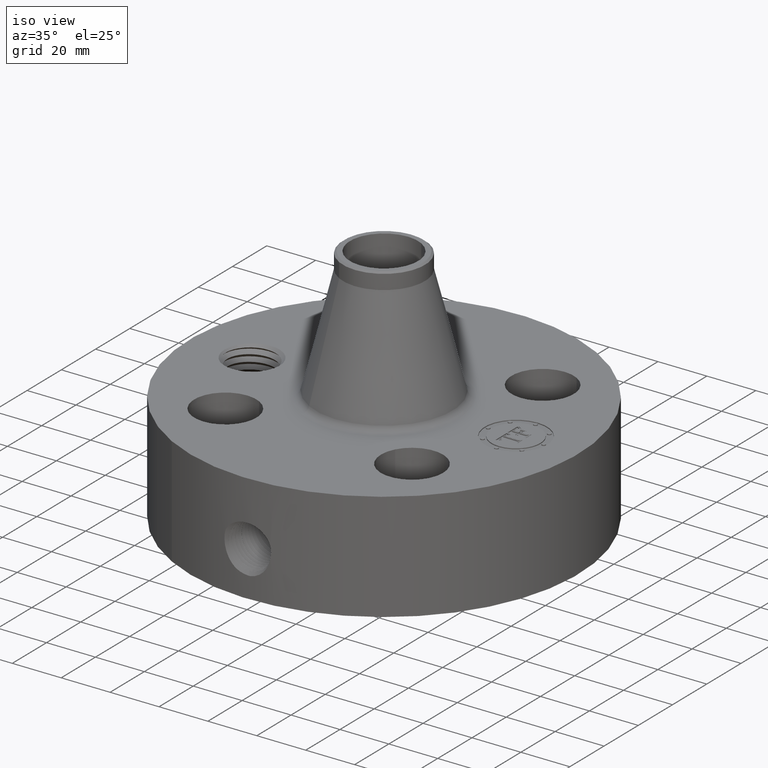
[diagram: clean part render]
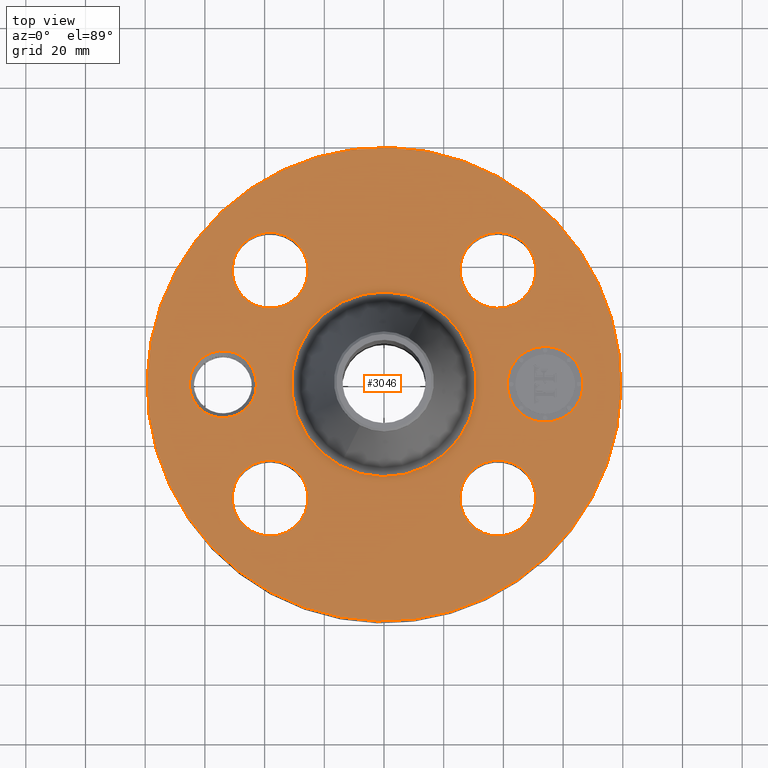
[diagram: tour spotlight — one face highlighted and labeled with its STEP entity id]
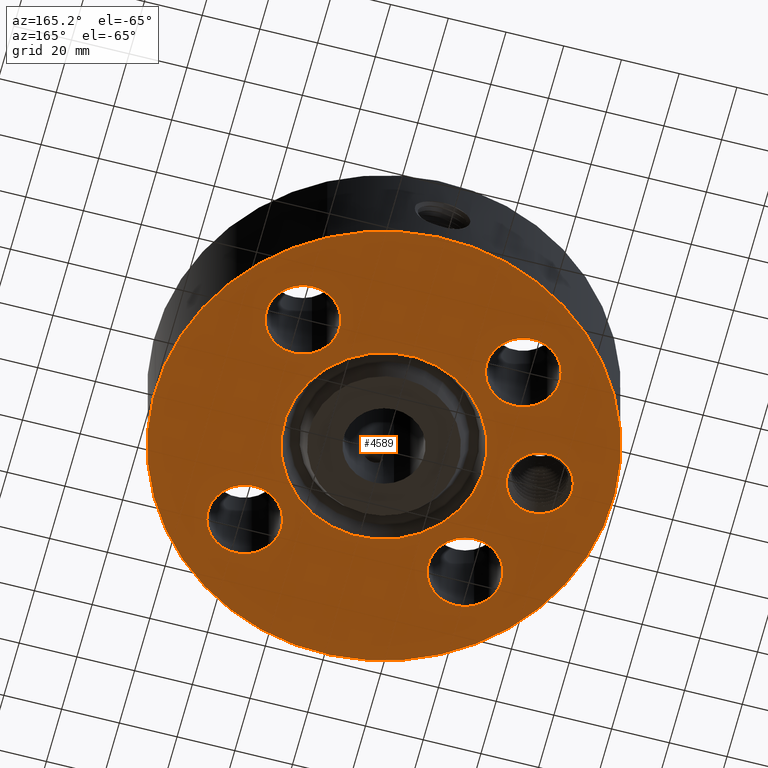
[diagram: tour spotlight — one face highlighted and labeled with its STEP entity id]
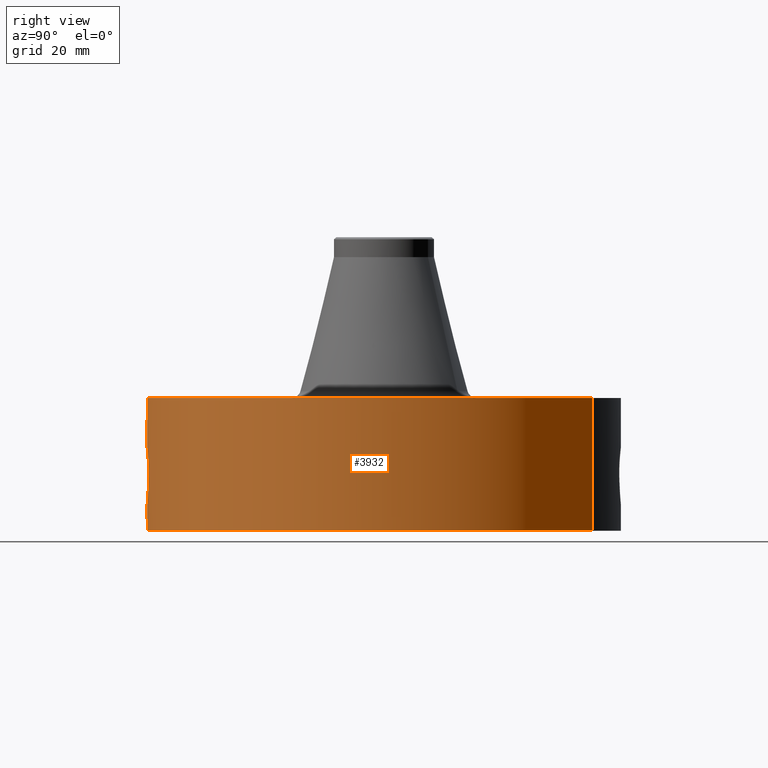
[diagram: tour spotlight — one face highlighted and labeled with its STEP entity id]
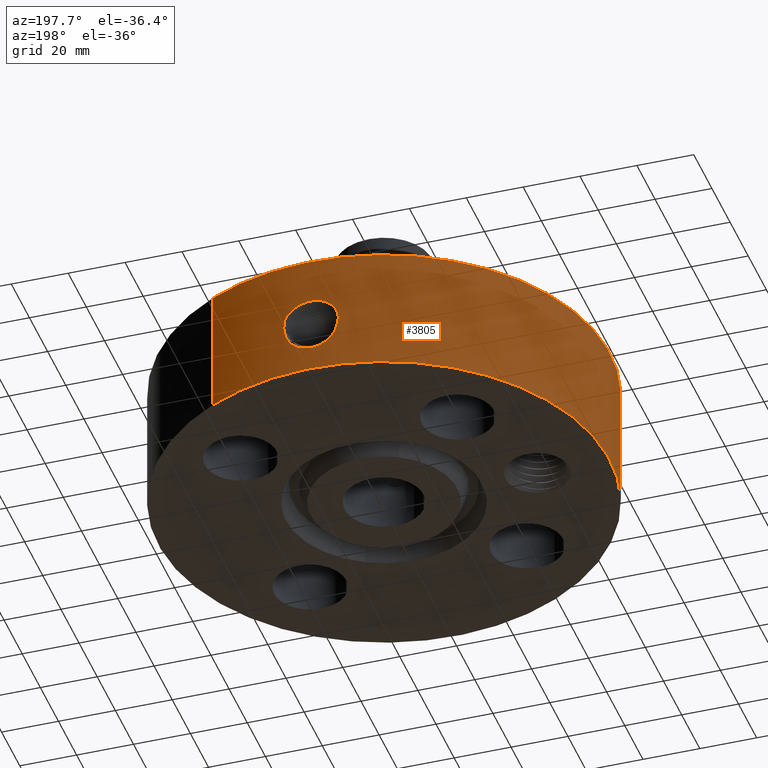
[diagram: tour spotlight — one face highlighted and labeled with its STEP entity id]
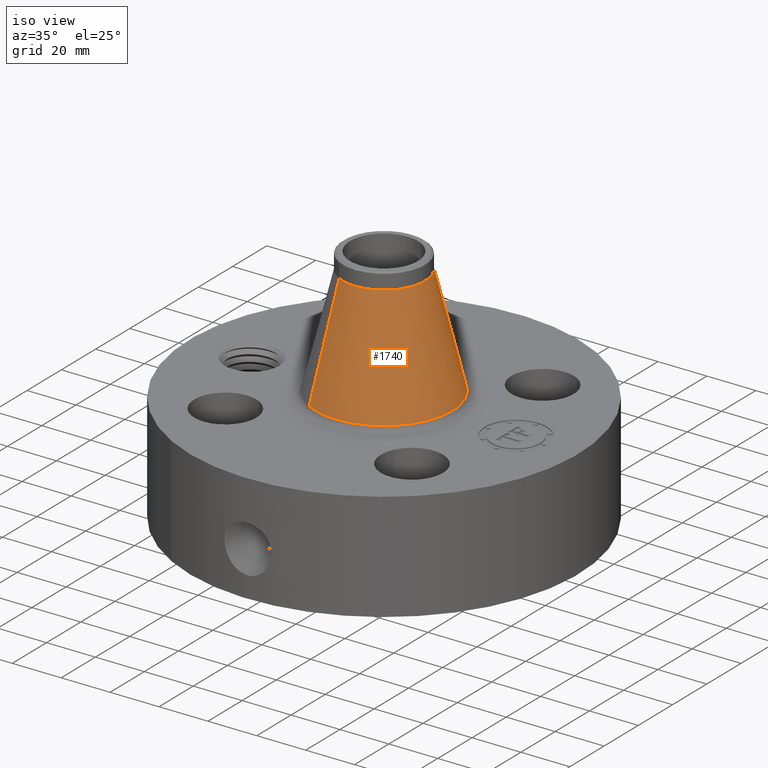
[diagram: tour spotlight — one face highlighted and labeled with its STEP entity id]
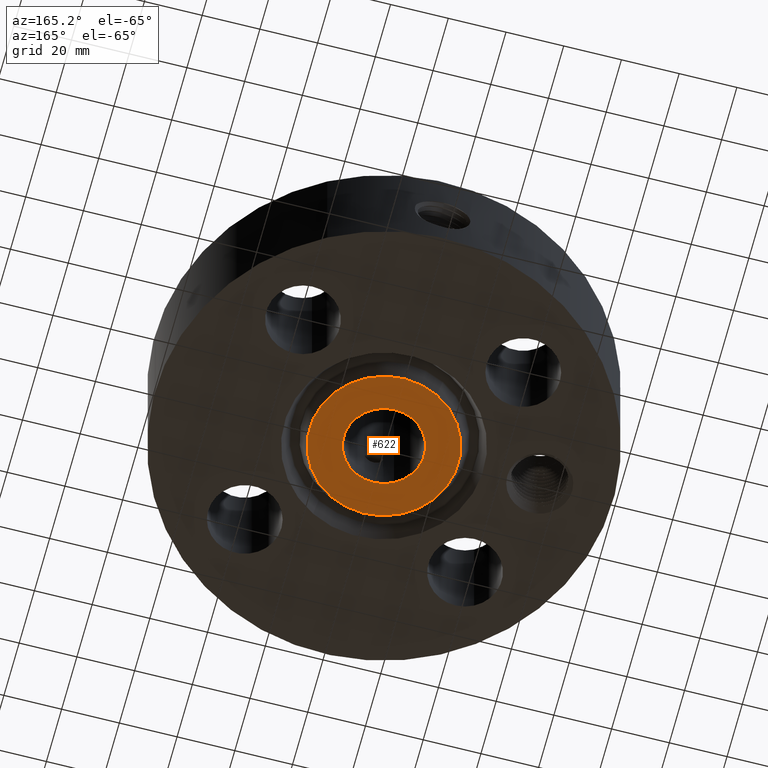
[diagram: tour spotlight — one face highlighted and labeled with its STEP entity id]
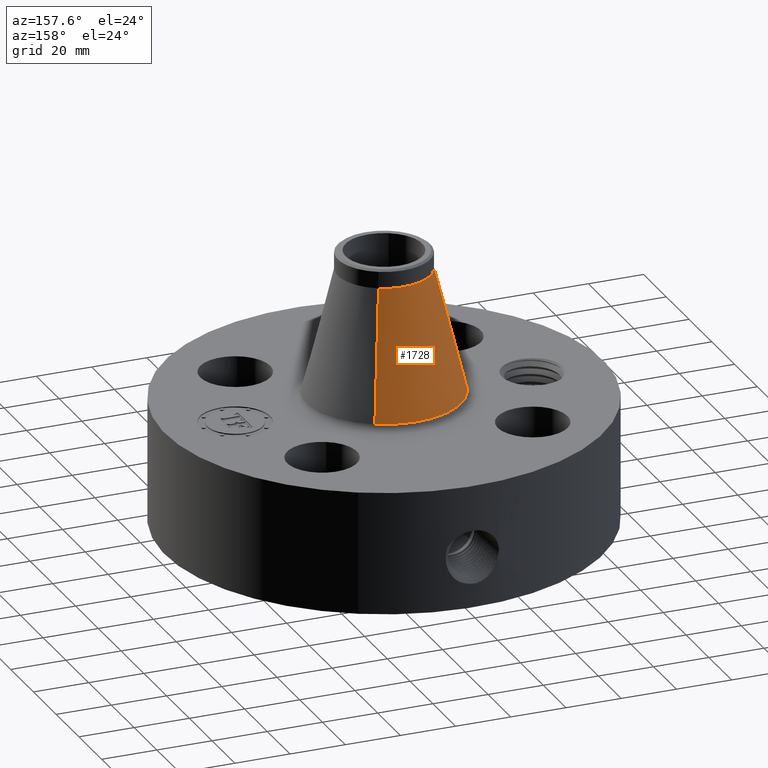
[diagram: tour spotlight — one face highlighted and labeled with its STEP entity id]
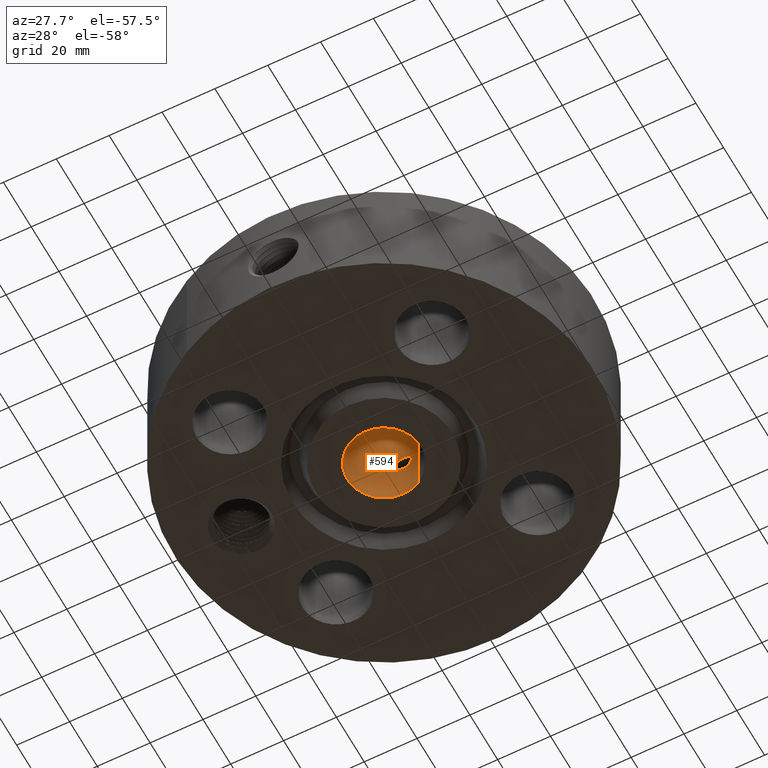
[diagram: tour spotlight — one face highlighted and labeled with its STEP entity id]
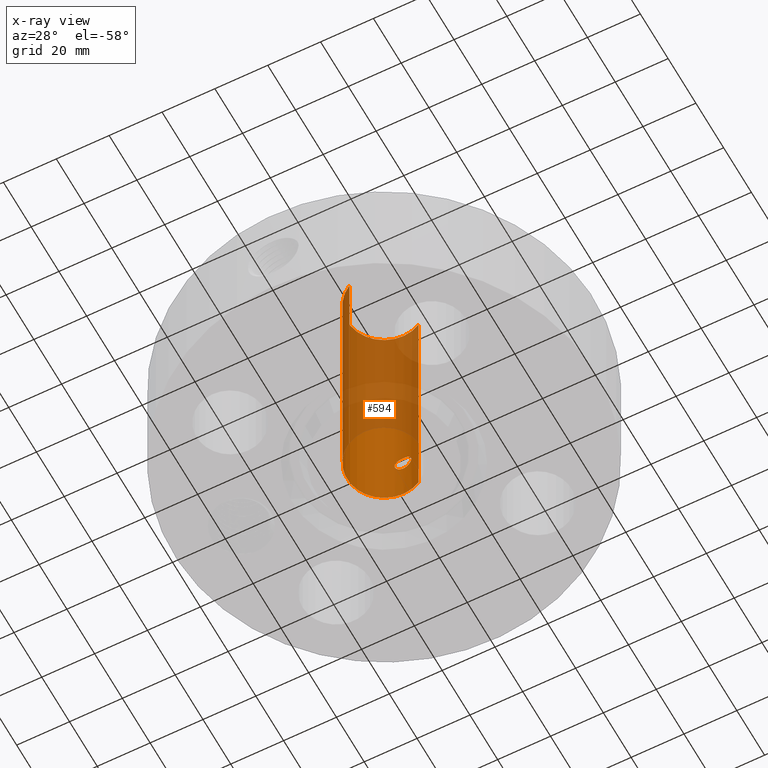
[diagram: x-ray of the same camera — body ghosted, this tour face saturated]
A machine part: a face-by-face anatomy tour. The part has 773 B-rep faces; the first image is the clean iso view, then the 8 largest visible faces are spotlighted one at a time (largest first), each with its STEP entity span.

Face 1 — top view, entity #3046. In plain terms, the highlighted planar face has unit normal (0, 0, -1).
Definition (entity closure, byte-faithful):
#2190=AXIS2_PLACEMENT_3D('Circle Axis2P3D',#2188,#2189,$) ;
#2216=AXIS2_PLACEMENT_3D('Circle Axis2P3D',#2214,#2215,$) ;
#2914=AXIS2_PLACEMENT_3D('Plane Axis2P3D',#2911,#2912,#2913) ;
#2918=AXIS2_PLACEMENT_3D('Circle Axis2P3D',#2916,#2917,$) ;
#2927=AXIS2_PLACEMENT_3D('Circle Axis2P3D',#2925,#2926,$) ;
#2936=AXIS2_PLACEMENT_3D('Circle Axis2P3D',#2934,#2935,$) ;
#2945=AXIS2_PLACEMENT_3D('Circle Axis2P3D',#2943,#2944,$) ;
#2954=AXIS2_PLACEMENT_3D('Circle Axis2P3D',#2952,#2953,$) ;
#2963=AXIS2_PLACEMENT_3D('Circle Axis2P3D',#2961,#2962,$) ;
#2976=AXIS2_PLACEMENT_3D('Circle Axis2P3D',#2974,#2975,$) ;
#2985=AXIS2_PLACEMENT_3D('Circle Axis2P3D',#2983,#2984,$) ;
#2994=AXIS2_PLACEMENT_3D('Circle Axis2P3D',#2992,#2993,$) ;
#3003=AXIS2_PLACEMENT_3D('Circle Axis2P3D',#3001,#3002,$) ;
#3012=AXIS2_PLACEMENT_3D('Circle Axis2P3D',#3010,#3011,$) ;
#3021=AXIS2_PLACEMENT_3D('Circle Axis2P3D',#3019,#3020,$) ;
#3030=AXIS2_PLACEMENT_3D('Circle Axis2P3D',#3028,#3029,$) ;
#3039=AXIS2_PLACEMENT_3D('Circle Axis2P3D',#3037,#3038,$) ;
#2188=CARTESIAN_POINT('Axis2P3D Location',(0.,0.,1.75000000001)) ;
#2192=CARTESIAN_POINT('Vertex',(-0.584264669885,-1.06948930445,1.75000000001)) ;
#2194=CARTESIAN_POINT('Vertex',(0.584264669885,1.06948930445,1.75000000001)) ;
#2214=CARTESIAN_POINT('Axis2P3D Location',(0.,0.,1.75000000001)) ;
#2911=CARTESIAN_POINT('Axis2P3D Location',(0.,3.12500000001,1.75000000001)) ;
#2916=CARTESIAN_POINT('Axis2P3D Location',(0.,0.,1.75000000001)) ;
#2920=CARTESIAN_POINT('Vertex',(1.49820480814,2.74244550592,1.75000000001)) ;
#2922=CARTESIAN_POINT('Vertex',(-1.49820480814,-2.74244550592,1.75000000001)) ;
#2925=CARTESIAN_POINT('Axis2P3D Location',(0.,0.,1.75000000001)) ;
#2934=CARTESIAN_POINT('Axis2P3D Location',(-2.12500000001,-5.59482469102E-016,1.75000000001)) ;
#2938=CARTESIAN_POINT('Vertex',(-2.51359355842,0.212289628495,1.75000000001)) ;
#2940=CARTESIAN_POINT('Vertex',(-1.7364064416,-0.212289628495,1.75000000001)) ;
#2943=CARTESIAN_POINT('Axis2P3D Location',(-2.12500000001,-5.59482469102E-016,1.75000000001)) ;
#2952=CARTESIAN_POINT('Axis2P3D Location',(1.50260191003,-1.50260191003,1.75000000001)) ;
#2956=CARTESIAN_POINT('Vertex',(1.06381062908,-1.26288914072,1.75000000001)) ;
#2958=CARTESIAN_POINT('Vertex',(1.94139319097,-1.74231467933,1.75000000001)) ;
#2961=CARTESIAN_POINT('Axis2P3D Location',(1.50260191003,-1.50260191003,1.75000000001)) ;
#2974=CARTESIAN_POINT('Axis2P3D Location',(-1.50260191003,-1.50260191003,1.75000000001)) ;
#2978=CARTESIAN_POINT('Vertex',(-1.74231467933,-1.94139319097,1.75000000001)) ;
#2980=CARTESIAN_POINT('Vertex',(-1.26288914072,-1.06381062908,1.75000000001)) ;
#2983=CARTESIAN_POINT('Axis2P3D Location',(-1.50260191003,-1.50260191003,1.75000000001)) ;
#2992=CARTESIAN_POINT('Axis2P3D Location',(-1.50260191003,1.50260191003,1.75000000001)) ;
#2996=CARTESIAN_POINT('Vertex',(-1.94139319097,1.74231467933,1.75000000001)) ;
#2998=CARTESIAN_POINT('Vertex',(-1.06381062908,1.26288914072,1.75000000001)) ;
#3001=CARTESIAN_POINT('Axis2P3D Location',(-1.50260191003,1.50260191003,1.75000000001)) ;
#3010=CARTESIAN_POINT('Axis2P3D Location',(1.50260191003,1.50260191003,1.75000000001)) ;
#3014=CARTESIAN_POINT('Vertex',(1.74231467933,1.94139319097,1.75000000001)) ;
#3016=CARTESIAN_POINT('Vertex',(1.26288914072,1.06381062908,1.75000000001)) ;
#3019=CARTESIAN_POINT('Axis2P3D Location',(1.50260191003,1.50260191003,1.75000000001)) ;
#3028=CARTESIAN_POINT('Axis2P3D Location',(2.12500000001,-5.59482469102E-015,1.75000000001)) ;
#3032=CARTESIAN_POINT('Vertex',(2.12500000001,0.499999995002,1.75000000001)) ;
#3034=CARTESIAN_POINT('Vertex',(2.12500000001,-0.499999995002,1.75000000001)) ;
#3037=CARTESIAN_POINT('Axis2P3D Location',(2.12500000001,-5.59482469102E-015,1.75000000001)) ;
#2189=DIRECTION('Axis2P3D Direction',(0.,0.,-0.0393700787402)) ;
#2215=DIRECTION('Axis2P3D Direction',(0.,0.,-0.0393700787402)) ;
#2912=DIRECTION('Axis2P3D Direction',(0.,0.,-0.0393700787402)) ;
#2913=DIRECTION('Axis2P3D XDirection',(0.0393700787402,0.,0.)) ;
#2917=DIRECTION('Axis2P3D Direction',(0.,0.,-0.0393700787402)) ;
#2926=DIRECTION('Axis2P3D Direction',(0.,0.,-0.0393700787402)) ;
#2935=DIRECTION('Axis2P3D Direction',(0.,0.,-0.0393700787402)) ;
#2944=DIRECTION('Axis2P3D Direction',(0.,0.,-0.0393700787402)) ;
#2953=DIRECTION('Axis2P3D Direction',(0.,0.,-0.0393700787402)) ;
#2962=DIRECTION('Axis2P3D Direction',(0.,0.,-0.0393700787402)) ;
#2975=DIRECTION('Axis2P3D Direction',(0.,0.,-0.0393700787402)) ;
#2984=DIRECTION('Axis2P3D Direction',(0.,0.,-0.0393700787402)) ;
#2993=DIRECTION('Axis2P3D Direction',(0.,0.,-0.0393700787402)) ;
#3002=DIRECTION('Axis2P3D Direction',(0.,0.,-0.0393700787402)) ;
#3011=DIRECTION('Axis2P3D Direction',(0.,0.,-0.0393700787402)) ;
#3020=DIRECTION('Axis2P3D Direction',(0.,0.,-0.0393700787402)) ;
#3029=DIRECTION('Axis2P3D Direction',(0.,0.,-0.0393700787402)) ;
#3038=DIRECTION('Axis2P3D Direction',(0.,0.,-0.0393700787402)) ;
#2931=ORIENTED_EDGE('',*,*,#2924,.F.) ;
#2932=ORIENTED_EDGE('',*,*,#2929,.F.) ;
#2949=ORIENTED_EDGE('',*,*,#2942,.T.) ;
#2950=ORIENTED_EDGE('',*,*,#2947,.T.) ;
#2967=ORIENTED_EDGE('',*,*,#2960,.T.) ;
#2968=ORIENTED_EDGE('',*,*,#2965,.T.) ;
#2971=ORIENTED_EDGE('',*,*,#2196,.T.) ;
#2972=ORIENTED_EDGE('',*,*,#2218,.T.) ;
#2989=ORIENTED_EDGE('',*,*,#2982,.T.) ;
#2990=ORIENTED_EDGE('',*,*,#2987,.T.) ;
#3007=ORIENTED_EDGE('',*,*,#3000,.T.) ;
#3008=ORIENTED_EDGE('',*,*,#3005,.T.) ;
#3025=ORIENTED_EDGE('',*,*,#3018,.T.) ;
#3026=ORIENTED_EDGE('',*,*,#3023,.T.) ;
#3043=ORIENTED_EDGE('',*,*,#3036,.T.) ;
#3044=ORIENTED_EDGE('',*,*,#3041,.T.) ;
#2951=FACE_BOUND('',#2948,.T.) ;
#2969=FACE_BOUND('',#2966,.T.) ;
#2973=FACE_BOUND('',#2970,.T.) ;
#2991=FACE_BOUND('',#2988,.T.) ;
#3009=FACE_BOUND('',#3006,.T.) ;
#3027=FACE_BOUND('',#3024,.T.) ;
#3045=FACE_BOUND('',#3042,.T.) ;
#3046=ADVANCED_FACE('PartBody',(#2933,#2951,#2969,#2973,#2991,#3009,#3027,#3045),#2915,.F.) ;
#2191=CIRCLE('generated circle',#2190,1.21867656777) ;
#2217=CIRCLE('generated circle',#2216,1.21867656777) ;
#2919=CIRCLE('generated circle',#2918,3.12500000001) ;
#2928=CIRCLE('generated circle',#2927,3.12500000001) ;
#2937=CIRCLE('generated circle',#2936,0.442800000002) ;
#2946=CIRCLE('generated circle',#2945,0.442800000002) ;
#2955=CIRCLE('generated circle',#2954,0.500000000002) ;
#2964=CIRCLE('generated circle',#2963,0.500000000002) ;
#2977=CIRCLE('generated circle',#2976,0.500000000002) ;
#2986=CIRCLE('generated circle',#2985,0.500000000002) ;
#2995=CIRCLE('generated circle',#2994,0.500000000002) ;
#3004=CIRCLE('generated circle',#3003,0.500000000002) ;
#3013=CIRCLE('generated circle',#3012,0.500000000002) ;
#3022=CIRCLE('generated circle',#3021,0.500000000002) ;
#3031=CIRCLE('generated circle',#3030,0.499999995002) ;
#3040=CIRCLE('generated circle',#3039,0.499999995002) ;
#2196=EDGE_CURVE('',#2193,#2195,#2191,.T.) ;
#2218=EDGE_CURVE('',#2195,#2193,#2217,.T.) ;
#2924=EDGE_CURVE('',#2921,#2923,#2919,.T.) ;
#2929=EDGE_CURVE('',#2923,#2921,#2928,.T.) ;
#2942=EDGE_CURVE('',#2939,#2941,#2937,.T.) ;
#2947=EDGE_CURVE('',#2941,#2939,#2946,.T.) ;
#2960=EDGE_CURVE('',#2957,#2959,#2955,.T.) ;
#2965=EDGE_CURVE('',#2959,#2957,#2964,.T.) ;
#2982=EDGE_CURVE('',#2979,#2981,#2977,.T.) ;
#2987=EDGE_CURVE('',#2981,#2979,#2986,.T.) ;
#3000=EDGE_CURVE('',#2997,#2999,#2995,.T.) ;
#3005=EDGE_CURVE('',#2999,#2997,#3004,.T.) ;
#3018=EDGE_CURVE('',#3015,#3017,#3013,.T.) ;
#3023=EDGE_CURVE('',#3017,#3015,#3022,.T.) ;
#3036=EDGE_CURVE('',#3033,#3035,#3031,.T.) ;
#3041=EDGE_CURVE('',#3035,#3033,#3040,.T.) ;
#2930=EDGE_LOOP('',(#2931,#2932)) ;
#2948=EDGE_LOOP('',(#2949,#2950)) ;
#2966=EDGE_LOOP('',(#2967,#2968)) ;
#2970=EDGE_LOOP('',(#2971,#2972)) ;
#2988=EDGE_LOOP('',(#2989,#2990)) ;
#3006=EDGE_LOOP('',(#3007,#3008)) ;
#3024=EDGE_LOOP('',(#3025,#3026)) ;
#3042=EDGE_LOOP('',(#3043,#3044)) ;
#2933=FACE_OUTER_BOUND('',#2930,.T.) ;
#2915=PLANE('',#2914) ;
#2193=VERTEX_POINT('',#2192) ;
#2195=VERTEX_POINT('',#2194) ;
#2921=VERTEX_POINT('',#2920) ;
#2923=VERTEX_POINT('',#2922) ;
#2939=VERTEX_POINT('',#2938) ;
#2941=VERTEX_POINT('',#2940) ;
#2957=VERTEX_POINT('',#2956) ;
#2959=VERTEX_POINT('',#2958) ;
#2979=VERTEX_POINT('',#2978) ;
#2981=VERTEX_POINT('',#2980) ;
#2997=VERTEX_POINT('',#2996) ;
#2999=VERTEX_POINT('',#2998) ;
#3015=VERTEX_POINT('',#3014) ;
#3017=VERTEX_POINT('',#3016) ;
#3033=VERTEX_POINT('',#3032) ;
#3035=VERTEX_POINT('',#3034) ;

Face 2 — auxiliary view, entity #4589. In plain terms, the highlighted planar face has unit normal (0, 0, -1).
Definition (entity closure, byte-faithful):
#598=AXIS2_PLACEMENT_3D('Plane Axis2P3D',#595,#596,#597) ;
#3368=AXIS2_PLACEMENT_3D('Circle Axis2P3D',#3366,#3367,$) ;
#3394=AXIS2_PLACEMENT_3D('Circle Axis2P3D',#3392,#3393,$) ;
#3667=AXIS2_PLACEMENT_3D('Circle Axis2P3D',#3665,#3666,$) ;
#3808=AXIS2_PLACEMENT_3D('Circle Axis2P3D',#3806,#3807,$) ;
#4094=AXIS2_PLACEMENT_3D('Circle Axis2P3D',#4092,#4093,$) ;
#4113=AXIS2_PLACEMENT_3D('Circle Axis2P3D',#4111,#4112,$) ;
#4137=AXIS2_PLACEMENT_3D('Circle Axis2P3D',#4135,#4136,$) ;
#4156=AXIS2_PLACEMENT_3D('Circle Axis2P3D',#4154,#4155,$) ;
#4180=AXIS2_PLACEMENT_3D('Circle Axis2P3D',#4178,#4179,$) ;
#4199=AXIS2_PLACEMENT_3D('Circle Axis2P3D',#4197,#4198,$) ;
#4223=AXIS2_PLACEMENT_3D('Circle Axis2P3D',#4221,#4222,$) ;
#4242=AXIS2_PLACEMENT_3D('Circle Axis2P3D',#4240,#4241,$) ;
#4553=AXIS2_PLACEMENT_3D('Circle Axis2P3D',#4551,#4552,$) ;
#4562=AXIS2_PLACEMENT_3D('Circle Axis2P3D',#4560,#4561,$) ;
#595=CARTESIAN_POINT('Axis2P3D Location',(0.,0.548500000002,0.)) ;
#3366=CARTESIAN_POINT('Axis2P3D Location',(0.,0.,0.)) ;
#3370=CARTESIAN_POINT('Vertex',(-0.651779019735,1.19307349289,0.)) ;
#3372=CARTESIAN_POINT('Vertex',(0.651779019735,-1.19307349289,0.)) ;
#3392=CARTESIAN_POINT('Axis2P3D Location',(0.,0.,0.)) ;
#3665=CARTESIAN_POINT('Axis2P3D Location',(0.,0.,2.79741234551E-016)) ;
#3669=CARTESIAN_POINT('Vertex',(-1.49820480814,-2.74244550592,2.79741234551E-016)) ;
#3671=CARTESIAN_POINT('Vertex',(1.49820480814,2.74244550592,2.79741234551E-016)) ;
#3806=CARTESIAN_POINT('Axis2P3D Location',(0.,0.,2.79741234551E-016)) ;
#4089=CARTESIAN_POINT('Vertex',(1.94139319097,-1.74231467933,0.)) ;
#4092=CARTESIAN_POINT('Axis2P3D Location',(1.50260191003,-1.50260191003,0.)) ;
#4096=CARTESIAN_POINT('Vertex',(1.06381062908,-1.26288914072,0.)) ;
#4111=CARTESIAN_POINT('Axis2P3D Location',(1.50260191003,-1.50260191003,0.)) ;
#4132=CARTESIAN_POINT('Vertex',(-1.26288914072,-1.06381062908,0.)) ;
#4135=CARTESIAN_POINT('Axis2P3D Location',(-1.50260191003,-1.50260191003,0.)) ;
#4139=CARTESIAN_POINT('Vertex',(-1.74231467933,-1.94139319097,0.)) ;
#4154=CARTESIAN_POINT('Axis2P3D Location',(-1.50260191003,-1.50260191003,0.)) ;
#4175=CARTESIAN_POINT('Vertex',(-1.06381062908,1.26288914072,0.)) ;
#4178=CARTESIAN_POINT('Axis2P3D Location',(-1.50260191003,1.50260191003,0.)) ;
#4182=CARTESIAN_POINT('Vertex',(-1.94139319097,1.74231467933,0.)) ;
#4197=CARTESIAN_POINT('Axis2P3D Location',(-1.50260191003,1.50260191003,0.)) ;
#4218=CARTESIAN_POINT('Vertex',(1.26288914072,1.06381062908,0.)) ;
#4221=CARTESIAN_POINT('Axis2P3D Location',(1.50260191003,1.50260191003,0.)) ;
#4225=CARTESIAN_POINT('Vertex',(1.74231467933,1.94139319097,0.)) ;
#4240=CARTESIAN_POINT('Axis2P3D Location',(1.50260191003,1.50260191003,0.)) ;
#4551=CARTESIAN_POINT('Axis2P3D Location',(-2.12500000001,6.99353086378E-017,0.)) ;
#4555=CARTESIAN_POINT('Vertex',(-1.7364064416,-0.212289628495,0.)) ;
#4557=CARTESIAN_POINT('Vertex',(-2.51359355842,0.212289628495,0.)) ;
#4560=CARTESIAN_POINT('Axis2P3D Location',(-2.12500000001,6.99353086378E-017,0.)) ;
#596=DIRECTION('Axis2P3D Direction',(0.,0.,-0.0393700787402)) ;
#597=DIRECTION('Axis2P3D XDirection',(0.0393700787402,0.,0.)) ;
#3367=DIRECTION('Axis2P3D Direction',(0.,0.,-0.0393700787402)) ;
#3393=DIRECTION('Axis2P3D Direction',(0.,0.,-0.0393700787402)) ;
#3666=DIRECTION('Axis2P3D Direction',(0.,0.,-0.0393700787402)) ;
#3807=DIRECTION('Axis2P3D Direction',(0.,0.,-0.0393700787402)) ;
#4093=DIRECTION('Axis2P3D Direction',(0.,-0.,-0.0393700787402)) ;
#4112=DIRECTION('Axis2P3D Direction',(0.,-0.,-0.0393700787402)) ;
#4136=DIRECTION('Axis2P3D Direction',(0.,-0.,-0.0393700787402)) ;
#4155=DIRECTION('Axis2P3D Direction',(0.,-0.,-0.0393700787402)) ;
#4179=DIRECTION('Axis2P3D Direction',(-0.,0.,-0.0393700787402)) ;
#4198=DIRECTION('Axis2P3D Direction',(-0.,0.,-0.0393700787402)) ;
#4222=DIRECTION('Axis2P3D Direction',(0.,0.,-0.0393700787402)) ;
#4241=DIRECTION('Axis2P3D Direction',(0.,0.,-0.0393700787402)) ;
#4552=DIRECTION('Axis2P3D Direction',(0.,0.,-0.0393700787402)) ;
#4561=DIRECTION('Axis2P3D Direction',(0.,0.,-0.0393700787402)) ;
#4548=ORIENTED_EDGE('',*,*,#3673,.T.) ;
#4549=ORIENTED_EDGE('',*,*,#3810,.T.) ;
#4566=ORIENTED_EDGE('',*,*,#4559,.F.) ;
#4567=ORIENTED_EDGE('',*,*,#4564,.F.) ;
#4570=ORIENTED_EDGE('',*,*,#4098,.F.) ;
#4571=ORIENTED_EDGE('',*,*,#4115,.F.) ;
#4574=ORIENTED_EDGE('',*,*,#4141,.F.) ;
#4575=ORIENTED_EDGE('',*,*,#4158,.F.) ;
#4578=ORIENTED_EDGE('',*,*,#4184,.F.) ;
#4579=ORIENTED_EDGE('',*,*,#4201,.F.) ;
#4582=ORIENTED_EDGE('',*,*,#4227,.F.) ;
#4583=ORIENTED_EDGE('',*,*,#4244,.F.) ;
#4586=ORIENTED_EDGE('',*,*,#3396,.F.) ;
#4587=ORIENTED_EDGE('',*,*,#3374,.F.) ;
#4568=FACE_BOUND('',#4565,.T.) ;
#4572=FACE_BOUND('',#4569,.T.) ;
#4576=FACE_BOUND('',#4573,.T.) ;
#4580=FACE_BOUND('',#4577,.T.) ;
#4584=FACE_BOUND('',#4581,.T.) ;
#4588=FACE_BOUND('',#4585,.T.) ;
#4589=ADVANCED_FACE('PartBody',(#4550,#4568,#4572,#4576,#4580,#4584,#4588),#599,.T.) ;
#3369=CIRCLE('generated circle',#3368,1.35950000001) ;
#3395=CIRCLE('generated circle',#3394,1.35950000001) ;
#3668=CIRCLE('generated circle',#3667,3.12500000001) ;
#3809=CIRCLE('generated circle',#3808,3.12500000001) ;
#4095=CIRCLE('generated circle',#4094,0.500000000002) ;
#4114=CIRCLE('generated circle',#4113,0.500000000002) ;
#4138=CIRCLE('generated circle',#4137,0.500000000002) ;
#4157=CIRCLE('generated circle',#4156,0.500000000002) ;
#4181=CIRCLE('generated circle',#4180,0.500000000002) ;
#4200=CIRCLE('generated circle',#4199,0.500000000002) ;
#4224=CIRCLE('generated circle',#4223,0.500000000002) ;
#4243=CIRCLE('generated circle',#4242,0.500000000002) ;
#4554=CIRCLE('generated circle',#4553,0.442800000002) ;
#4563=CIRCLE('generated circle',#4562,0.442800000002) ;
#3374=EDGE_CURVE('',#3371,#3373,#3369,.T.) ;
#3396=EDGE_CURVE('',#3373,#3371,#3395,.T.) ;
#3673=EDGE_CURVE('',#3670,#3672,#3668,.T.) ;
#3810=EDGE_CURVE('',#3672,#3670,#3809,.T.) ;
#4098=EDGE_CURVE('',#4090,#4097,#4095,.T.) ;
#4115=EDGE_CURVE('',#4097,#4090,#4114,.T.) ;
#4141=EDGE_CURVE('',#4133,#4140,#4138,.T.) ;
#4158=EDGE_CURVE('',#4140,#4133,#4157,.T.) ;
#4184=EDGE_CURVE('',#4176,#4183,#4181,.T.) ;
#4201=EDGE_CURVE('',#4183,#4176,#4200,.T.) ;
#4227=EDGE_CURVE('',#4219,#4226,#4224,.T.) ;
#4244=EDGE_CURVE('',#4226,#4219,#4243,.T.) ;
#4559=EDGE_CURVE('',#4556,#4558,#4554,.T.) ;
#4564=EDGE_CURVE('',#4558,#4556,#4563,.T.) ;
#4547=EDGE_LOOP('',(#4548,#4549)) ;
#4565=EDGE_LOOP('',(#4566,#4567)) ;
#4569=EDGE_LOOP('',(#4570,#4571)) ;
#4573=EDGE_LOOP('',(#4574,#4575)) ;
#4577=EDGE_LOOP('',(#4578,#4579)) ;
#4581=EDGE_LOOP('',(#4582,#4583)) ;
#4585=EDGE_LOOP('',(#4586,#4587)) ;
#4550=FACE_OUTER_BOUND('',#4547,.T.) ;
#599=PLANE('',#598) ;
#3371=VERTEX_POINT('',#3370) ;
#3373=VERTEX_POINT('',#3372) ;
#3670=VERTEX_POINT('',#3669) ;
#3672=VERTEX_POINT('',#3671) ;
#4090=VERTEX_POINT('',#4089) ;
#4097=VERTEX_POINT('',#4096) ;
#4133=VERTEX_POINT('',#4132) ;
#4140=VERTEX_POINT('',#4139) ;
#4176=VERTEX_POINT('',#4175) ;
#4183=VERTEX_POINT('',#4182) ;
#4219=VERTEX_POINT('',#4218) ;
#4226=VERTEX_POINT('',#4225) ;
#4556=VERTEX_POINT('',#4555) ;
#4558=VERTEX_POINT('',#4557) ;

Face 3 — right view, entity #3932. In plain terms, the highlighted cylindrical surface (partial cylindrical patch) has radius 79.375 mm, axis along (0, 0, -1).
Definition (entity closure, byte-faithful):
#2918=AXIS2_PLACEMENT_3D('Circle Axis2P3D',#2916,#2917,$) ;
#3663=AXIS2_PLACEMENT_3D('Cylinder Axis2P3D',#3660,#3661,#3662) ;
#3808=AXIS2_PLACEMENT_3D('Circle Axis2P3D',#3806,#3807,$) ;
#2916=CARTESIAN_POINT('Axis2P3D Location',(0.,0.,1.75000000001)) ;
#2920=CARTESIAN_POINT('Vertex',(1.49820480814,2.74244550592,1.75000000001)) ;
#2922=CARTESIAN_POINT('Vertex',(-1.49820480814,-2.74244550592,1.75000000001)) ;
#3660=CARTESIAN_POINT('Axis2P3D Location',(0.,0.,1.93500000001)) ;
#3669=CARTESIAN_POINT('Vertex',(-1.49820480814,-2.74244550592,2.79741234551E-016)) ;
#3671=CARTESIAN_POINT('Vertex',(1.49820480814,2.74244550592,2.79741234551E-016)) ;
#3674=CARTESIAN_POINT('Line Origine',(-1.49820480814,-2.74244550592,0.875000000004)) ;
#3679=CARTESIAN_POINT('Line Origine',(1.49820480814,2.74244550592,0.875000000004)) ;
#3806=CARTESIAN_POINT('Axis2P3D Location',(0.,0.,2.79741234551E-016)) ;
#3818=CARTESIAN_POINT('Control Point',(0.169704717538,-3.1203886471,1.06064240177)) ;
#3819=CARTESIAN_POINT('Control Point',(0.1310838979,-3.12248906984,1.0818158456)) ;
#3820=CARTESIAN_POINT('Control Point',(0.0889131026115,-3.12414682281,1.09658641964)) ;
#3821=CARTESIAN_POINT('Control Point',(0.044818629583,-3.1249897837,1.10402879623)) ;
#3822=CARTESIAN_POINT('Control Point',(0.00071809005673,-3.12499991751,1.1041184944)) ;
#3823=CARTESIAN_POINT('Vertex',(0.169704717538,-3.1203886471,1.06064240177)) ;
#3825=CARTESIAN_POINT('Vertex',(0.000717741354547,-3.12499991759,1.10411850437)) ;
#3829=CARTESIAN_POINT('Control Point',(0.214828365203,-3.11760705888,1.03122168402)) ;
#3830=CARTESIAN_POINT('Control Point',(0.200567444893,-3.11858975174,1.04215440214)) ;
#3831=CARTESIAN_POINT('Control Point',(0.185468800736,-3.1195313054,1.05199991481)) ;
#3832=CARTESIAN_POINT('Control Point',(0.169704717538,-3.1203886471,1.06064240177)) ;
#3833=CARTESIAN_POINT('Vertex',(0.214819755124,-3.11760740685,1.03122827568)) ;
#3837=CARTESIAN_POINT('Control Point',(0.349319520623,-3.1054147666,0.695751740493)) ;
#3838=CARTESIAN_POINT('Control Point',(0.367742391069,-3.10334242884,0.769887138265)) ;
#3839=CARTESIAN_POINT('Control Point',(0.362872189342,-3.10371965124,0.851313227567)) ;
#3840=CARTESIAN_POINT('Control Point',(0.328330014033,-3.10823669973,0.927181129357)) ;
#3841=CARTESIAN_POINT('Control Point',(0.277094377688,-3.11331660396,0.987020183701)) ;
#3842=CARTESIAN_POINT('Control Point',(0.2148195246,-3.11760766806,1.03122796377)) ;
#3843=CARTESIAN_POINT('Vertex',(0.349319944292,-3.10541445784,0.695751408099)) ;
#3847=CARTESIAN_POINT('Control Point',(0.343314956419,-3.10608432609,0.665638005248)) ;
#3848=CARTESIAN_POINT('Control Point',(0.345750263741,-3.105815152,0.675583767346)) ;
#3849=CARTESIAN_POINT('Control Point',(0.347754761635,-3.10559078264,0.685635939979)) ;
#3850=CARTESIAN_POINT('Control Point',(0.349320760795,-3.10541462709,0.695756639812)) ;
#3851=CARTESIAN_POINT('Vertex',(0.343316361651,-3.10608454098,0.665643528244)) ;
#3855=CARTESIAN_POINT('Control Point',(0.0277254576848,-3.12487700543,0.340955879504)) ;
#3856=CARTESIAN_POINT('Control Point',(0.0774181260001,-3.12443610745,0.347426040391)) ;
#3857=CARTESIAN_POINT('Control Point',(0.125647813854,-3.1230203286,0.363124264442)) ;
#3858=CARTESIAN_POINT('Control Point',(0.169868202372,-3.1207710219,0.387404846871)) ;
#3859=CARTESIAN_POINT('Control Point',(0.247734908791,-3.11560980068,0.449013447963)) ;
#3860=CARTESIAN_POINT('Control Point',(0.301618432704,-3.11055308527,0.529926850641)) ;
#3861=CARTESIAN_POINT('Control Point',(0.322082747729,-3.10840919382,0.573713153298)) ;
#3862=CARTESIAN_POINT('Control Point',(0.335978460495,-3.10689522983,0.619331126296)) ;
#3863=CARTESIAN_POINT('Control Point',(0.343315847394,-3.10608422761,0.66564370871)) ;
#3864=CARTESIAN_POINT('Vertex',(0.0277254576848,-3.12487700543,0.340955879504)) ;
#3868=CARTESIAN_POINT('Control Point',(0.0277254576848,-3.12487700543,0.340955879504)) ;
#3869=CARTESIAN_POINT('Control Point',(0.0184757556471,-3.12495907337,0.340843344739)) ;
#3870=CARTESIAN_POINT('Control Point',(0.00922750800052,-3.12500000807,0.340982960287)) ;
#3871=CARTESIAN_POINT('Control Point',(-2.72878353707E-006,-3.12500000001,0.341374667803)) ;
#3872=CARTESIAN_POINT('Vertex',(-2.72878353443E-006,-3.12500000001,0.341374667803)) ;
#3876=CARTESIAN_POINT('Control Point',(-0.196165446846,-3.11883698156,0.390926701887)) ;
#3877=CARTESIAN_POINT('Control Point',(-0.135166171215,-3.12267365216,0.360852379196)) ;
#3878=CARTESIAN_POINT('Control Point',(-0.0679575223114,-3.12499994067,0.344258495021)) ;
#3879=CARTESIAN_POINT('Control Point',(-2.7287835343E-006,-3.12500000001,0.341374667803)) ;
#3880=CARTESIAN_POINT('Vertex',(-0.196165446846,-3.11883698156,0.390926701887)) ;
#3884=CARTESIAN_POINT('Control Point',(-0.208430700444,-3.11804131518,0.39720075365)) ;
#3885=CARTESIAN_POINT('Control Point',(-0.204372509624,-3.11831259175,0.395048408364)) ;
#3886=CARTESIAN_POINT('Control Point',(-0.200283259171,-3.11857798357,0.392956896705)) ;
#3887=CARTESIAN_POINT('Control Point',(-0.196165446846,-3.11883698156,0.390926701887)) ;
#3888=CARTESIAN_POINT('Vertex',(-0.208430700444,-3.11804131518,0.39720075365)) ;
#3892=CARTESIAN_POINT('Control Point',(-0.208430700444,-3.11804131518,0.39720075365)) ;
#3893=CARTESIAN_POINT('Control Point',(-0.260864565297,-3.11453628556,0.431760962722)) ;
#3894=CARTESIAN_POINT('Control Point',(-0.305853227075,-3.11042183958,0.477063821358)) ;
#3895=CARTESIAN_POINT('Control Point',(-0.341117458034,-3.10650438179,0.529732598577)) ;
#3896=CARTESIAN_POINT('Control Point',(-0.3881230344,-3.10089436294,0.634758914234)) ;
#3897=CARTESIAN_POINT('Control Point',(-0.402021851965,-3.09902386779,0.748522756876)) ;
#3898=CARTESIAN_POINT('Control Point',(-0.401434794041,-3.09910244712,0.800960648065)) ;
#3899=CARTESIAN_POINT('Control Point',(-0.393890460231,-3.10011096876,0.853010388321)) ;
#3900=CARTESIAN_POINT('Control Point',(-0.379413664747,-3.10188173067,0.903435446735)) ;
#3901=CARTESIAN_POINT('Vertex',(-0.379413664747,-3.10188173067,0.903435446735)) ;
#3905=CARTESIAN_POINT('Control Point',(-0.379413664747,-3.10188173067,0.903435446735)) ;
#3906=CARTESIAN_POINT('Control Point',(-0.333043374255,-3.10755361741,0.98499041489)) ;
#3907=CARTESIAN_POINT('Control Point',(-0.261045430271,-3.11551492767,1.04977075899)) ;
#3908=CARTESIAN_POINT('Control Point',(-0.176679203557,-3.12196183692,1.0900818921)) ;
#3909=CARTESIAN_POINT('Control Point',(-0.0874794971957,-3.12500072397,1.10844239302)) ;
#3910=CARTESIAN_POINT('Control Point',(2.58579354908E-005,-3.12499999991,1.10415298443)) ;
#3911=CARTESIAN_POINT('Vertex',(2.58579354929E-005,-3.12499999991,1.10415298443)) ;
#3915=CARTESIAN_POINT('Control Point',(0.000717741340626,-3.12499991759,1.10411850435)) ;
#3916=CARTESIAN_POINT('Control Point',(0.000371821770505,-3.12499999704,1.1041360257)) ;
#3917=CARTESIAN_POINT('Control Point',(2.5857945767E-005,-3.12499999991,1.10415298442)) ;
#2917=DIRECTION('Axis2P3D Direction',(0.,0.,-0.0393700787402)) ;
#3661=DIRECTION('Axis2P3D Direction',(0.,0.,-0.0393700787402)) ;
#3662=DIRECTION('Axis2P3D XDirection',(0.0188750212049,0.0345504945626,0.)) ;
#3675=DIRECTION('Vector Direction',(0.,0.,-0.0393700787402)) ;
#3680=DIRECTION('Vector Direction',(0.,0.,-0.0393700787402)) ;
#3807=DIRECTION('Axis2P3D Direction',(0.,0.,-0.0393700787402)) ;
#3676=VECTOR('Line Direction',#3675,0.0393700787402) ;
#3681=VECTOR('Line Direction',#3680,0.0393700787402) ;
#3812=ORIENTED_EDGE('',*,*,#3810,.F.) ;
#3813=ORIENTED_EDGE('',*,*,#3683,.T.) ;
#3814=ORIENTED_EDGE('',*,*,#2924,.T.) ;
#3815=ORIENTED_EDGE('',*,*,#3678,.F.) ;
#3920=ORIENTED_EDGE('',*,*,#3827,.F.) ;
#3921=ORIENTED_EDGE('',*,*,#3835,.F.) ;
#3922=ORIENTED_EDGE('',*,*,#3845,.F.) ;
#3923=ORIENTED_EDGE('',*,*,#3853,.F.) ;
#3924=ORIENTED_EDGE('',*,*,#3866,.F.) ;
#3925=ORIENTED_EDGE('',*,*,#3874,.T.) ;
#3926=ORIENTED_EDGE('',*,*,#3882,.F.) ;
#3927=ORIENTED_EDGE('',*,*,#3890,.F.) ;
#3928=ORIENTED_EDGE('',*,*,#3903,.T.) ;
#3929=ORIENTED_EDGE('',*,*,#3913,.T.) ;
#3930=ORIENTED_EDGE('',*,*,#3918,.F.) ;
#3931=FACE_BOUND('',#3919,.T.) ;
#3932=ADVANCED_FACE('PartBody',(#3816,#3931),#3664,.T.) ;
#3817=B_SPLINE_CURVE_WITH_KNOTS('',4,(#3818,#3819,#3820,#3821,#3822),.UNSPECIFIED.,.F.,.U.,(5,5),(0.,6.52343803024),.UNSPECIFIED.) ;
#3828=B_SPLINE_CURVE_WITH_KNOTS('',3,(#3829,#3830,#3831,#3832),.UNSPECIFIED.,.F.,.U.,(4,4),(26.5413750907,28.5384071477),.UNSPECIFIED.) ;
#3836=B_SPLINE_CURVE_WITH_KNOTS('',5,(#3837,#3838,#3839,#3840,#3841,#3842),.UNSPECIFIED.,.F.,.U.,(6,6),(0.,14.2714268247),.UNSPECIFIED.) ;
#3846=B_SPLINE_CURVE_WITH_KNOTS('',3,(#3847,#3848,#3849,#3850),.UNSPECIFIED.,.F.,.U.,(4,4),(11.3581883352,12.4955466629),.UNSPECIFIED.) ;
#3854=B_SPLINE_CURVE_WITH_KNOTS('',5,(#3855,#3856,#3857,#3858,#3859,#3860,#3861,#3862,#3863),.UNSPECIFIED.,.F.,.U.,(6,3,6),(0.,8.71049033596,17.4949017872),.UNSPECIFIED.) ;
#3867=B_SPLINE_CURVE_WITH_KNOTS('',3,(#3868,#3869,#3870,#3871),.UNSPECIFIED.,.F.,.U.,(4,4),(0.,0.964667645903),.UNSPECIFIED.) ;
#3875=B_SPLINE_CURVE_WITH_KNOTS('',3,(#3876,#3877,#3878,#3879),.UNSPECIFIED.,.F.,.U.,(4,4),(0.,7.10207032204),.UNSPECIFIED.) ;
#3883=B_SPLINE_CURVE_WITH_KNOTS('',3,(#3884,#3885,#3886,#3887),.UNSPECIFIED.,.F.,.U.,(4,4),(0.,0.4794318006),.UNSPECIFIED.) ;
#3891=B_SPLINE_CURVE_WITH_KNOTS('',5,(#3892,#3893,#3894,#3895,#3896,#3897,#3898,#3899,#3900),.UNSPECIFIED.,.F.,.U.,(6,3,6),(0.,10.9217403178,20.0515770457),.UNSPECIFIED.) ;
#3904=B_SPLINE_CURVE_WITH_KNOTS('',5,(#3905,#3906,#3907,#3908,#3909,#3910),.UNSPECIFIED.,.F.,.U.,(6,6),(0.,16.3565583503),.UNSPECIFIED.) ;
#3914=B_SPLINE_CURVE_WITH_KNOTS('',2,(#3915,#3916,#3917),.UNSPECIFIED.,.F.,.U.,(3,3),(1.18594321646,1.21181033274),.UNSPECIFIED.) ;
#2919=CIRCLE('generated circle',#2918,3.12500000001) ;
#3809=CIRCLE('generated circle',#3808,3.12500000001) ;
#3664=CYLINDRICAL_SURFACE('generated cylinder',#3663,3.12500000001) ;
#2924=EDGE_CURVE('',#2921,#2923,#2919,.T.) ;
#3678=EDGE_CURVE('',#3670,#2923,#3677,.F.) ;
#3683=EDGE_CURVE('',#3672,#2921,#3682,.F.) ;
#3810=EDGE_CURVE('',#3672,#3670,#3809,.T.) ;
#3827=EDGE_CURVE('',#3824,#3826,#3817,.T.) ;
#3835=EDGE_CURVE('',#3834,#3824,#3828,.T.) ;
#3845=EDGE_CURVE('',#3844,#3834,#3836,.T.) ;
#3853=EDGE_CURVE('',#3852,#3844,#3846,.T.) ;
#3866=EDGE_CURVE('',#3865,#3852,#3854,.T.) ;
#3874=EDGE_CURVE('',#3865,#3873,#3867,.T.) ;
#3882=EDGE_CURVE('',#3881,#3873,#3875,.T.) ;
#3890=EDGE_CURVE('',#3889,#3881,#3883,.T.) ;
#3903=EDGE_CURVE('',#3889,#3902,#3891,.T.) ;
#3913=EDGE_CURVE('',#3902,#3912,#3904,.T.) ;
#3918=EDGE_CURVE('',#3826,#3912,#3914,.T.) ;
#3811=EDGE_LOOP('',(#3812,#3813,#3814,#3815)) ;
#3919=EDGE_LOOP('',(#3920,#3921,#3922,#3923,#3924,#3925,#3926,#3927,#3928,#3929,#3930)) ;
#3816=FACE_OUTER_BOUND('',#3811,.T.) ;
#3677=LINE('Line',#3674,#3676) ;
#3682=LINE('Line',#3679,#3681) ;
#2921=VERTEX_POINT('',#2920) ;
#2923=VERTEX_POINT('',#2922) ;
#3670=VERTEX_POINT('',#3669) ;
#3672=VERTEX_POINT('',#3671) ;
#3824=VERTEX_POINT('',#3823) ;
#3826=VERTEX_POINT('',#3825) ;
#3834=VERTEX_POINT('',#3833) ;
#3844=VERTEX_POINT('',#3843) ;
#3852=VERTEX_POINT('',#3851) ;
#3865=VERTEX_POINT('',#3864) ;
#3873=VERTEX_POINT('',#3872) ;
#3881=VERTEX_POINT('',#3880) ;
#3889=VERTEX_POINT('',#3888) ;
#3902=VERTEX_POINT('',#3901) ;
#3912=VERTEX_POINT('',#3911) ;

Face 4 — auxiliary view, entity #3805. In plain terms, the highlighted cylindrical surface (partial cylindrical patch) has radius 79.375 mm, axis along (0, 0, -1).
Definition (entity closure, byte-faithful):
#2927=AXIS2_PLACEMENT_3D('Circle Axis2P3D',#2925,#2926,$) ;
#3663=AXIS2_PLACEMENT_3D('Cylinder Axis2P3D',#3660,#3661,#3662) ;
#3667=AXIS2_PLACEMENT_3D('Circle Axis2P3D',#3665,#3666,$) ;
#2920=CARTESIAN_POINT('Vertex',(1.49820480814,2.74244550592,1.75000000001)) ;
#2922=CARTESIAN_POINT('Vertex',(-1.49820480814,-2.74244550592,1.75000000001)) ;
#2925=CARTESIAN_POINT('Axis2P3D Location',(0.,0.,1.75000000001)) ;
#3660=CARTESIAN_POINT('Axis2P3D Location',(0.,0.,1.93500000001)) ;
#3665=CARTESIAN_POINT('Axis2P3D Location',(0.,0.,2.79741234551E-016)) ;
#3669=CARTESIAN_POINT('Vertex',(-1.49820480814,-2.74244550592,2.79741234551E-016)) ;
#3671=CARTESIAN_POINT('Vertex',(1.49820480814,2.74244550592,2.79741234551E-016)) ;
#3674=CARTESIAN_POINT('Line Origine',(-1.49820480814,-2.74244550592,0.875000000004)) ;
#3679=CARTESIAN_POINT('Line Origine',(1.49820480814,2.74244550592,0.875000000004)) ;
#3691=CARTESIAN_POINT('Control Point',(-0.169704717538,3.1203886471,1.06064240177)) ;
#3692=CARTESIAN_POINT('Control Point',(-0.131083897902,3.12248906984,1.0818158456)) ;
#3693=CARTESIAN_POINT('Control Point',(-0.0889131026066,3.12414682281,1.09658641964)) ;
#3694=CARTESIAN_POINT('Control Point',(-0.0448186295767,3.1249897837,1.10402879623)) ;
#3695=CARTESIAN_POINT('Control Point',(-0.000718090053938,3.12499991751,1.1041184944)) ;
#3696=CARTESIAN_POINT('Vertex',(-0.169704717538,3.1203886471,1.06064240177)) ;
#3698=CARTESIAN_POINT('Vertex',(-0.000717741354547,3.12499991759,1.10411850437)) ;
#3702=CARTESIAN_POINT('Control Point',(-0.214828365203,3.11760705888,1.03122168402)) ;
#3703=CARTESIAN_POINT('Control Point',(-0.200567444892,3.11858975174,1.04215440214)) ;
#3704=CARTESIAN_POINT('Control Point',(-0.185468800736,3.1195313054,1.05199991481)) ;
#3705=CARTESIAN_POINT('Control Point',(-0.169704717538,3.1203886471,1.06064240177)) ;
#3706=CARTESIAN_POINT('Vertex',(-0.214819755124,3.11760740685,1.03122827568)) ;
#3710=CARTESIAN_POINT('Control Point',(-0.349319520623,3.1054147666,0.695751740493)) ;
#3711=CARTESIAN_POINT('Control Point',(-0.367742391069,3.10334242884,0.769887138266)) ;
#3712=CARTESIAN_POINT('Control Point',(-0.362872189342,3.10371965124,0.851313227532)) ;
#3713=CARTESIAN_POINT('Control Point',(-0.328330014056,3.10823669972,0.927181129333)) ;
#3714=CARTESIAN_POINT('Control Point',(-0.277094377689,3.11331660396,0.9870201837)) ;
#3715=CARTESIAN_POINT('Control Point',(-0.2148195246,3.11760766806,1.03122796377)) ;
#3716=CARTESIAN_POINT('Vertex',(-0.349319944292,3.10541445784,0.695751408099)) ;
#3720=CARTESIAN_POINT('Control Point',(-0.343314956419,3.10608432609,0.665638005247)) ;
#3721=CARTESIAN_POINT('Control Point',(-0.345750263741,3.105815152,0.675583767345)) ;
#3722=CARTESIAN_POINT('Control Point',(-0.347754761635,3.10559078264,0.685635939978)) ;
#3723=CARTESIAN_POINT('Control Point',(-0.349320760795,3.10541462709,0.695756639812)) ;
#3724=CARTESIAN_POINT('Vertex',(-0.343316361651,3.10608454098,0.665643528244)) ;
#3728=CARTESIAN_POINT('Control Point',(-0.0277254576848,3.12487700543,0.340955879504)) ;
#3729=CARTESIAN_POINT('Control Point',(-0.0774181260017,3.12443610745,0.347426040391)) ;
#3730=CARTESIAN_POINT('Control Point',(-0.125647813857,3.1230203286,0.363124264443)) ;
#3731=CARTESIAN_POINT('Control Point',(-0.169868202371,3.1207710219,0.38740484687)) ;
#3732=CARTESIAN_POINT('Control Point',(-0.247734908789,3.11560980068,0.449013447961)) ;
#3733=CARTESIAN_POINT('Control Point',(-0.301618432703,3.11055308527,0.52992685064)) ;
#3734=CARTESIAN_POINT('Control Point',(-0.32208274773,3.10840919382,0.5737131533)) ;
#3735=CARTESIAN_POINT('Control Point',(-0.335978460495,3.10689522983,0.619331126297)) ;
#3736=CARTESIAN_POINT('Control Point',(-0.343315847394,3.10608422761,0.66564370871)) ;
#3737=CARTESIAN_POINT('Vertex',(-0.0277254576848,3.12487700543,0.340955879504)) ;
#3741=CARTESIAN_POINT('Control Point',(-0.0277254576848,3.12487700543,0.340955879504)) ;
#3742=CARTESIAN_POINT('Control Point',(-0.0184757556471,3.12495907337,0.340843344739)) ;
#3743=CARTESIAN_POINT('Control Point',(-0.00922750800052,3.12500000807,0.340982960287)) ;
#3744=CARTESIAN_POINT('Control Point',(2.72878353669E-006,3.12500000001,0.341374667803)) ;
#3745=CARTESIAN_POINT('Vertex',(2.72878353415E-006,3.12500000001,0.341374667803)) ;
#3749=CARTESIAN_POINT('Control Point',(0.196165446846,3.11883698156,0.390926701887)) ;
#3750=CARTESIAN_POINT('Control Point',(0.135166171215,3.12267365216,0.360852379196)) ;
#3751=CARTESIAN_POINT('Control Point',(0.0679575223108,3.12499994067,0.344258495021)) ;
#3752=CARTESIAN_POINT('Control Point',(2.72878354224E-006,3.12500000001,0.341374667803)) ;
#3753=CARTESIAN_POINT('Vertex',(0.196165446846,3.11883698156,0.390926701887)) ;
#3757=CARTESIAN_POINT('Control Point',(0.208430700444,3.11804131518,0.39720075365)) ;
#3758=CARTESIAN_POINT('Control Point',(0.204372509624,3.11831259175,0.395048408364)) ;
#3759=CARTESIAN_POINT('Control Point',(0.200283259171,3.11857798357,0.392956896705)) ;
#3760=CARTESIAN_POINT('Control Point',(0.196165446846,3.11883698156,0.390926701887)) ;
#3761=CARTESIAN_POINT('Vertex',(0.208430700444,3.11804131518,0.39720075365)) ;
#3765=CARTESIAN_POINT('Control Point',(0.208430700444,3.11804131518,0.39720075365)) ;
#3766=CARTESIAN_POINT('Control Point',(0.260864565306,3.11453628556,0.431760962728)) ;
#3767=CARTESIAN_POINT('Control Point',(0.30585322709,3.11042183958,0.477063821374)) ;
#3768=CARTESIAN_POINT('Control Point',(0.34111745802,3.1065043818,0.529732598547)) ;
#3769=CARTESIAN_POINT('Control Point',(0.388123034397,3.10089436294,0.634758914216)) ;
#3770=CARTESIAN_POINT('Control Point',(0.402021851965,3.09902386779,0.748522756869)) ;
#3771=CARTESIAN_POINT('Control Point',(0.401434794041,3.09910244712,0.800960648061)) ;
#3772=CARTESIAN_POINT('Control Point',(0.393890460231,3.10011096876,0.853010388319)) ;
#3773=CARTESIAN_POINT('Control Point',(0.379413664747,3.10188173067,0.903435446735)) ;
#3774=CARTESIAN_POINT('Vertex',(0.379413664747,3.10188173067,0.903435446735)) ;
#3778=CARTESIAN_POINT('Control Point',(0.379413664747,3.10188173067,0.903435446735)) ;
#3779=CARTESIAN_POINT('Control Point',(0.333043374254,3.10755361741,0.984990414891)) ;
#3780=CARTESIAN_POINT('Control Point',(0.261045430257,3.11551492767,1.049770759)) ;
#3781=CARTESIAN_POINT('Control Point',(0.176679203556,3.12196183692,1.0900818921)) ;
#3782=CARTESIAN_POINT('Control Point',(0.0874794971975,3.12500072397,1.10844239302)) ;
#3783=CARTESIAN_POINT('Control Point',(-2.58579354939E-005,3.12499999991,1.10415298443)) ;
#3784=CARTESIAN_POINT('Vertex',(-2.58579354932E-005,3.12499999991,1.10415298443)) ;
#3788=CARTESIAN_POINT('Control Point',(-0.000717741340626,3.12499991759,1.10411850435)) ;
#3789=CARTESIAN_POINT('Control Point',(-0.000371821770507,3.12499999704,1.1041360257)) ;
#3790=CARTESIAN_POINT('Control Point',(-2.58579457707E-005,3.12499999991,1.10415298442)) ;
#2926=DIRECTION('Axis2P3D Direction',(0.,0.,-0.0393700787402)) ;
#3661=DIRECTION('Axis2P3D Direction',(0.,0.,-0.0393700787402)) ;
#3662=DIRECTION('Axis2P3D XDirection',(0.0188750212049,0.0345504945626,0.)) ;
#3666=DIRECTION('Axis2P3D Direction',(0.,0.,-0.0393700787402)) ;
#3675=DIRECTION('Vector Direction',(0.,0.,-0.0393700787402)) ;
#3680=DIRECTION('Vector Direction',(0.,0.,-0.0393700787402)) ;
#3676=VECTOR('Line Direction',#3675,0.0393700787402) ;
#3681=VECTOR('Line Direction',#3680,0.0393700787402) ;
#3685=ORIENTED_EDGE('',*,*,#3673,.F.) ;
#3686=ORIENTED_EDGE('',*,*,#3678,.T.) ;
#3687=ORIENTED_EDGE('',*,*,#2929,.T.) ;
#3688=ORIENTED_EDGE('',*,*,#3683,.F.) ;
#3793=ORIENTED_EDGE('',*,*,#3700,.F.) ;
#3794=ORIENTED_EDGE('',*,*,#3708,.F.) ;
#3795=ORIENTED_EDGE('',*,*,#3718,.F.) ;
#3796=ORIENTED_EDGE('',*,*,#3726,.F.) ;
#3797=ORIENTED_EDGE('',*,*,#3739,.F.) ;
#3798=ORIENTED_EDGE('',*,*,#3747,.T.) ;
#3799=ORIENTED_EDGE('',*,*,#3755,.F.) ;
#3800=ORIENTED_EDGE('',*,*,#3763,.F.) ;
#3801=ORIENTED_EDGE('',*,*,#3776,.T.) ;
#3802=ORIENTED_EDGE('',*,*,#3786,.T.) ;
#3803=ORIENTED_EDGE('',*,*,#3791,.F.) ;
#3804=FACE_BOUND('',#3792,.T.) ;
#3805=ADVANCED_FACE('PartBody',(#3689,#3804),#3664,.T.) ;
#3690=B_SPLINE_CURVE_WITH_KNOTS('',4,(#3691,#3692,#3693,#3694,#3695),.UNSPECIFIED.,.F.,.U.,(5,5),(0.,6.52343802987),.UNSPECIFIED.) ;
#3701=B_SPLINE_CURVE_WITH_KNOTS('',3,(#3702,#3703,#3704,#3705),.UNSPECIFIED.,.F.,.U.,(4,4),(26.5413750874,28.5384071443),.UNSPECIFIED.) ;
#3709=B_SPLINE_CURVE_WITH_KNOTS('',5,(#3710,#3711,#3712,#3713,#3714,#3715),.UNSPECIFIED.,.F.,.U.,(6,6),(0.,14.271426825),.UNSPECIFIED.) ;
#3719=B_SPLINE_CURVE_WITH_KNOTS('',3,(#3720,#3721,#3722,#3723),.UNSPECIFIED.,.F.,.U.,(4,4),(11.3581883322,12.49554666),.UNSPECIFIED.) ;
#3727=B_SPLINE_CURVE_WITH_KNOTS('',5,(#3728,#3729,#3730,#3731,#3732,#3733,#3734,#3735,#3736),.UNSPECIFIED.,.F.,.U.,(6,3,6),(0.,8.71049033623,17.4949017873),.UNSPECIFIED.) ;
#3740=B_SPLINE_CURVE_WITH_KNOTS('',3,(#3741,#3742,#3743,#3744),.UNSPECIFIED.,.F.,.U.,(4,4),(0.,0.964667645903),.UNSPECIFIED.) ;
#3748=B_SPLINE_CURVE_WITH_KNOTS('',3,(#3749,#3750,#3751,#3752),.UNSPECIFIED.,.F.,.U.,(4,4),(0.,7.10207032198),.UNSPECIFIED.) ;
#3756=B_SPLINE_CURVE_WITH_KNOTS('',3,(#3757,#3758,#3759,#3760),.UNSPECIFIED.,.F.,.U.,(4,4),(0.,0.4794318006),.UNSPECIFIED.) ;
#3764=B_SPLINE_CURVE_WITH_KNOTS('',5,(#3765,#3766,#3767,#3768,#3769,#3770,#3771,#3772,#3773),.UNSPECIFIED.,.F.,.U.,(6,3,6),(0.,10.9217403197,20.0515770479),.UNSPECIFIED.) ;
#3777=B_SPLINE_CURVE_WITH_KNOTS('',5,(#3778,#3779,#3780,#3781,#3782,#3783),.UNSPECIFIED.,.F.,.U.,(6,6),(0.,16.3565583506),.UNSPECIFIED.) ;
#3787=B_SPLINE_CURVE_WITH_KNOTS('',2,(#3788,#3789,#3790),.UNSPECIFIED.,.F.,.U.,(3,3),(1.18594321646,1.21181033274),.UNSPECIFIED.) ;
#2928=CIRCLE('generated circle',#2927,3.12500000001) ;
#3668=CIRCLE('generated circle',#3667,3.12500000001) ;
#3664=CYLINDRICAL_SURFACE('generated cylinder',#3663,3.12500000001) ;
#2929=EDGE_CURVE('',#2923,#2921,#2928,.T.) ;
#3673=EDGE_CURVE('',#3670,#3672,#3668,.T.) ;
#3678=EDGE_CURVE('',#3670,#2923,#3677,.F.) ;
#3683=EDGE_CURVE('',#3672,#2921,#3682,.F.) ;
#3700=EDGE_CURVE('',#3697,#3699,#3690,.T.) ;
#3708=EDGE_CURVE('',#3707,#3697,#3701,.T.) ;
#3718=EDGE_CURVE('',#3717,#3707,#3709,.T.) ;
#3726=EDGE_CURVE('',#3725,#3717,#3719,.T.) ;
#3739=EDGE_CURVE('',#3738,#3725,#3727,.T.) ;
#3747=EDGE_CURVE('',#3738,#3746,#3740,.T.) ;
#3755=EDGE_CURVE('',#3754,#3746,#3748,.T.) ;
#3763=EDGE_CURVE('',#3762,#3754,#3756,.T.) ;
#3776=EDGE_CURVE('',#3762,#3775,#3764,.T.) ;
#3786=EDGE_CURVE('',#3775,#3785,#3777,.T.) ;
#3791=EDGE_CURVE('',#3699,#3785,#3787,.T.) ;
#3684=EDGE_LOOP('',(#3685,#3686,#3687,#3688)) ;
#3792=EDGE_LOOP('',(#3793,#3794,#3795,#3796,#3797,#3798,#3799,#3800,#3801,#3802,#3803)) ;
#3689=FACE_OUTER_BOUND('',#3684,.T.) ;
#3677=LINE('Line',#3674,#3676) ;
#3682=LINE('Line',#3679,#3681) ;
#2921=VERTEX_POINT('',#2920) ;
#2923=VERTEX_POINT('',#2922) ;
#3670=VERTEX_POINT('',#3669) ;
#3672=VERTEX_POINT('',#3671) ;
#3697=VERTEX_POINT('',#3696) ;
#3699=VERTEX_POINT('',#3698) ;
#3707=VERTEX_POINT('',#3706) ;
#3717=VERTEX_POINT('',#3716) ;
#3725=VERTEX_POINT('',#3724) ;
#3738=VERTEX_POINT('',#3737) ;
#3746=VERTEX_POINT('',#3745) ;
#3754=VERTEX_POINT('',#3753) ;
#3762=VERTEX_POINT('',#3761) ;
#3775=VERTEX_POINT('',#3774) ;
#3785=VERTEX_POINT('',#3784) ;

Face 5 — iso view, entity #1740. In plain terms, the highlighted conical surface has half-angle 14.046 deg.
Definition (entity closure, byte-faithful):
#1364=AXIS2_PLACEMENT_3D('Circle Axis2P3D',#1362,#1363,$) ;
#1701=AXIS2_PLACEMENT_3D('Cone Axis2P3D',#1698,#1699,#1700) ;
#1731=AXIS2_PLACEMENT_3D('Circle Axis2P3D',#1729,#1730,$) ;
#1339=CARTESIAN_POINT('Vertex',(0.31642085548,0.57920449085,3.60864201629)) ;
#1346=CARTESIAN_POINT('Vertex',(-0.31642085548,-0.57920449085,3.60864201629)) ;
#1362=CARTESIAN_POINT('Axis2P3D Location',(0.,0.,3.60864201629)) ;
#1698=CARTESIAN_POINT('Axis2P3D Location',(0.,0.,3.60864201629)) ;
#1707=CARTESIAN_POINT('Vertex',(-0.528453738494,-0.967328079805,1.84087571263)) ;
#1709=CARTESIAN_POINT('Vertex',(0.528453738494,0.967328079805,1.84087571263)) ;
#1712=CARTESIAN_POINT('Line Origine',(-0.422437296987,-0.773266285328,2.72475886446)) ;
#1717=CARTESIAN_POINT('Line Origine',(0.422437296987,0.773266285328,2.72475886446)) ;
#1729=CARTESIAN_POINT('Axis2P3D Location',(0.,0.,1.84087571263)) ;
#1363=DIRECTION('Axis2P3D Direction',(0.,0.,-0.0393700787402)) ;
#1699=DIRECTION('Axis2P3D Direction',(0.,0.,-0.0393700787402)) ;
#1700=DIRECTION('Axis2P3D XDirection',(0.0188750212049,0.0345504945626,0.)) ;
#1713=DIRECTION('Vector Direction',(-0.00458101284905,-0.00838548777318,-0.0381929445852)) ;
#1718=DIRECTION('Vector Direction',(0.00458101284905,0.00838548777318,-0.0381929445852)) ;
#1730=DIRECTION('Axis2P3D Direction',(0.,0.,-0.0393700787402)) ;
#1714=VECTOR('Line Direction',#1713,0.0393700787402) ;
#1719=VECTOR('Line Direction',#1718,0.0393700787402) ;
#1735=ORIENTED_EDGE('',*,*,#1733,.F.) ;
#1736=ORIENTED_EDGE('',*,*,#1721,.T.) ;
#1737=ORIENTED_EDGE('',*,*,#1366,.T.) ;
#1738=ORIENTED_EDGE('',*,*,#1716,.F.) ;
#1740=ADVANCED_FACE('PartBody',(#1739),#1702,.T.) ;
#1365=CIRCLE('generated circle',#1364,0.660000000003) ;
#1732=CIRCLE('generated circle',#1731,1.10226447267) ;
#1702=CONICAL_SURFACE('Cone',#1701,0.660000000003,0.245150569199) ;
#1366=EDGE_CURVE('',#1340,#1347,#1365,.T.) ;
#1716=EDGE_CURVE('',#1708,#1347,#1715,.F.) ;
#1721=EDGE_CURVE('',#1710,#1340,#1720,.F.) ;
#1733=EDGE_CURVE('',#1710,#1708,#1732,.T.) ;
#1734=EDGE_LOOP('',(#1735,#1736,#1737,#1738)) ;
#1739=FACE_OUTER_BOUND('',#1734,.T.) ;
#1715=LINE('Line',#1712,#1714) ;
#1720=LINE('Line',#1717,#1719) ;
#1340=VERTEX_POINT('',#1339) ;
#1347=VERTEX_POINT('',#1346) ;
#1708=VERTEX_POINT('',#1707) ;
#1710=VERTEX_POINT('',#1709) ;

Face 6 — auxiliary view, entity #622. In plain terms, the highlighted planar face has unit normal (0, 0, -1).
Definition (entity closure, byte-faithful):
#252=AXIS2_PLACEMENT_3D('Circle Axis2P3D',#250,#251,$) ;
#543=AXIS2_PLACEMENT_3D('Circle Axis2P3D',#541,#542,$) ;
#598=AXIS2_PLACEMENT_3D('Plane Axis2P3D',#595,#596,#597) ;
#602=AXIS2_PLACEMENT_3D('Circle Axis2P3D',#600,#601,$) ;
#611=AXIS2_PLACEMENT_3D('Circle Axis2P3D',#609,#610,$) ;
#247=CARTESIAN_POINT('Vertex',(0.262964907925,0.481354035199,-5.31508345647E-015)) ;
#250=CARTESIAN_POINT('Axis2P3D Location',(0.,0.,-5.59482469102E-015)) ;
#254=CARTESIAN_POINT('Vertex',(-0.262964907925,-0.481354035199,-5.31508345647E-015)) ;
#541=CARTESIAN_POINT('Axis2P3D Location',(0.,0.,-5.59482469102E-015)) ;
#595=CARTESIAN_POINT('Axis2P3D Location',(0.,0.548500000002,0.)) ;
#600=CARTESIAN_POINT('Axis2P3D Location',(1.39870617276E-016,6.99353086378E-017,0.)) ;
#604=CARTESIAN_POINT('Vertex',(-0.486856634455,0.891185091603,0.)) ;
#606=CARTESIAN_POINT('Vertex',(0.486856634455,-0.891185091603,0.)) ;
#609=CARTESIAN_POINT('Axis2P3D Location',(-1.39870617276E-016,0.,0.)) ;
#251=DIRECTION('Axis2P3D Direction',(0.,0.,-0.0393700787402)) ;
#542=DIRECTION('Axis2P3D Direction',(0.,0.,-0.0393700787402)) ;
#596=DIRECTION('Axis2P3D Direction',(0.,0.,-0.0393700787402)) ;
#597=DIRECTION('Axis2P3D XDirection',(0.0393700787402,0.,0.)) ;
#601=DIRECTION('Axis2P3D Direction',(0.,0.,-0.0393700787402)) ;
#610=DIRECTION('Axis2P3D Direction',(0.,0.,-0.0393700787402)) ;
#615=ORIENTED_EDGE('',*,*,#608,.T.) ;
#616=ORIENTED_EDGE('',*,*,#613,.T.) ;
#619=ORIENTED_EDGE('',*,*,#256,.F.) ;
#620=ORIENTED_EDGE('',*,*,#545,.F.) ;
#621=FACE_BOUND('',#618,.T.) ;
#622=ADVANCED_FACE('PartBody',(#617,#621),#599,.T.) ;
#253=CIRCLE('generated circle',#252,0.548500000002) ;
#544=CIRCLE('generated circle',#543,0.548500000002) ;
#603=CIRCLE('generated circle',#602,1.0155) ;
#612=CIRCLE('generated circle',#611,1.0155) ;
#256=EDGE_CURVE('',#248,#255,#253,.T.) ;
#545=EDGE_CURVE('',#255,#248,#544,.T.) ;
#608=EDGE_CURVE('',#605,#607,#603,.T.) ;
#613=EDGE_CURVE('',#607,#605,#612,.T.) ;
#614=EDGE_LOOP('',(#615,#616)) ;
#618=EDGE_LOOP('',(#619,#620)) ;
#617=FACE_OUTER_BOUND('',#614,.T.) ;
#599=PLANE('',#598) ;
#248=VERTEX_POINT('',#247) ;
#255=VERTEX_POINT('',#254) ;
#605=VERTEX_POINT('',#604) ;
#607=VERTEX_POINT('',#606) ;

Face 7 — auxiliary view, entity #1728. In plain terms, the highlighted conical surface has half-angle 14.046 deg.
Definition (entity closure, byte-faithful):
#1344=AXIS2_PLACEMENT_3D('Circle Axis2P3D',#1342,#1343,$) ;
#1701=AXIS2_PLACEMENT_3D('Cone Axis2P3D',#1698,#1699,#1700) ;
#1705=AXIS2_PLACEMENT_3D('Circle Axis2P3D',#1703,#1704,$) ;
#1339=CARTESIAN_POINT('Vertex',(0.31642085548,0.57920449085,3.60864201629)) ;
#1342=CARTESIAN_POINT('Axis2P3D Location',(0.,0.,3.60864201629)) ;
#1346=CARTESIAN_POINT('Vertex',(-0.31642085548,-0.57920449085,3.60864201629)) ;
#1698=CARTESIAN_POINT('Axis2P3D Location',(0.,0.,3.60864201629)) ;
#1703=CARTESIAN_POINT('Axis2P3D Location',(0.,0.,1.84087571263)) ;
#1707=CARTESIAN_POINT('Vertex',(-0.528453738494,-0.967328079805,1.84087571263)) ;
#1709=CARTESIAN_POINT('Vertex',(0.528453738494,0.967328079805,1.84087571263)) ;
#1712=CARTESIAN_POINT('Line Origine',(-0.422437296987,-0.773266285328,2.72475886446)) ;
#1717=CARTESIAN_POINT('Line Origine',(0.422437296987,0.773266285328,2.72475886446)) ;
#1343=DIRECTION('Axis2P3D Direction',(0.,0.,-0.0393700787402)) ;
#1699=DIRECTION('Axis2P3D Direction',(0.,0.,-0.0393700787402)) ;
#1700=DIRECTION('Axis2P3D XDirection',(0.0188750212049,0.0345504945626,0.)) ;
#1704=DIRECTION('Axis2P3D Direction',(0.,0.,-0.0393700787402)) ;
#1713=DIRECTION('Vector Direction',(-0.00458101284905,-0.00838548777318,-0.0381929445852)) ;
#1718=DIRECTION('Vector Direction',(0.00458101284905,0.00838548777318,-0.0381929445852)) ;
#1714=VECTOR('Line Direction',#1713,0.0393700787402) ;
#1719=VECTOR('Line Direction',#1718,0.0393700787402) ;
#1723=ORIENTED_EDGE('',*,*,#1711,.F.) ;
#1724=ORIENTED_EDGE('',*,*,#1716,.T.) ;
#1725=ORIENTED_EDGE('',*,*,#1348,.T.) ;
#1726=ORIENTED_EDGE('',*,*,#1721,.F.) ;
#1728=ADVANCED_FACE('PartBody',(#1727),#1702,.T.) ;
#1345=CIRCLE('generated circle',#1344,0.660000000003) ;
#1706=CIRCLE('generated circle',#1705,1.10226447267) ;
#1702=CONICAL_SURFACE('Cone',#1701,0.660000000003,0.245150569199) ;
#1348=EDGE_CURVE('',#1347,#1340,#1345,.T.) ;
#1711=EDGE_CURVE('',#1708,#1710,#1706,.T.) ;
#1716=EDGE_CURVE('',#1708,#1347,#1715,.F.) ;
#1721=EDGE_CURVE('',#1710,#1340,#1720,.F.) ;
#1722=EDGE_LOOP('',(#1723,#1724,#1725,#1726)) ;
#1727=FACE_OUTER_BOUND('',#1722,.T.) ;
#1715=LINE('Line',#1712,#1714) ;
#1720=LINE('Line',#1717,#1719) ;
#1340=VERTEX_POINT('',#1339) ;
#1347=VERTEX_POINT('',#1346) ;
#1708=VERTEX_POINT('',#1707) ;
#1710=VERTEX_POINT('',#1709) ;

Face 8 — auxiliary view, entity #594. An x-ray twin of the same camera follows (body ghosted, this face saturated) — the face is partly hidden behind the body. In plain terms, the highlighted cylindrical surface (partial cylindrical patch) has radius 13.9319 mm, axis along (0, 0, -1).
Definition (entity closure, byte-faithful):
#232=AXIS2_PLACEMENT_3D('Cylinder Axis2P3D',#229,#230,#231) ;
#533=AXIS2_PLACEMENT_3D('Circle Axis2P3D',#531,#532,$) ;
#543=AXIS2_PLACEMENT_3D('Circle Axis2P3D',#541,#542,$) ;
#229=CARTESIAN_POINT('Axis2P3D Location',(0.,0.,1.93500000001)) ;
#238=CARTESIAN_POINT('Vertex',(0.262964907925,0.481354035199,3.87000000002)) ;
#240=CARTESIAN_POINT('Vertex',(-0.262964907925,-0.481354035199,3.87000000002)) ;
#243=CARTESIAN_POINT('Line Origine',(0.262964907925,0.481354035199,1.93500000001)) ;
#247=CARTESIAN_POINT('Vertex',(0.262964907925,0.481354035199,-5.31508345647E-015)) ;
#254=CARTESIAN_POINT('Vertex',(-0.262964907925,-0.481354035199,-5.31508345647E-015)) ;
#257=CARTESIAN_POINT('Line Origine',(-0.262964907925,-0.481354035199,1.93500000001)) ;
#531=CARTESIAN_POINT('Axis2P3D Location',(0.,0.,3.87000000002)) ;
#541=CARTESIAN_POINT('Axis2P3D Location',(0.,0.,-5.59482469102E-015)) ;
#553=CARTESIAN_POINT('Control Point',(-0.109697820237,0.537418494507,0.690071807677)) ;
#554=CARTESIAN_POINT('Control Point',(-0.10306733595,0.53877190843,0.677934787601)) ;
#555=CARTESIAN_POINT('Control Point',(-0.0947692780509,0.540359191076,0.666734870574)) ;
#556=CARTESIAN_POINT('Control Point',(-0.0849741111076,0.542039387819,0.656760052716)) ;
#557=CARTESIAN_POINT('Control Point',(-0.0556321136842,0.546263345503,0.634183076503)) ;
#558=CARTESIAN_POINT('Control Point',(-0.0194711013355,0.548896485681,0.623249176113)) ;
#559=CARTESIAN_POINT('Control Point',(0.00442353275412,0.549258241032,0.62182599929)) ;
#560=CARTESIAN_POINT('Control Point',(0.0534044893523,0.547053451989,0.630539305998)) ;
#561=CARTESIAN_POINT('Control Point',(0.0929798498099,0.541117492995,0.660658990381)) ;
#562=CARTESIAN_POINT('Control Point',(0.109256659178,0.537669514088,0.681449175775)) ;
#563=CARTESIAN_POINT('Control Point',(0.126227903508,0.533809465879,0.721087553157)) ;
#564=CARTESIAN_POINT('Control Point',(0.125904763066,0.533844140944,0.763559572303)) ;
#565=CARTESIAN_POINT('Control Point',(0.123016801995,0.53455170038,0.779999932406)) ;
#566=CARTESIAN_POINT('Control Point',(0.11751681489,0.535822481942,0.795615618621)) ;
#567=CARTESIAN_POINT('Control Point',(0.109697820237,0.537418494507,0.809928192329)) ;
#568=CARTESIAN_POINT('Vertex',(-0.109697820237,0.537418494507,0.690071807677)) ;
#570=CARTESIAN_POINT('Vertex',(0.109697820237,0.537418494507,0.809928192329)) ;
#574=CARTESIAN_POINT('Control Point',(-0.109697820237,0.537418494507,0.690071807677)) ;
#575=CARTESIAN_POINT('Control Point',(-0.11624291912,0.536082509444,0.702052530821)) ;
#576=CARTESIAN_POINT('Control Point',(-0.121163095122,0.534974412946,0.714946341691)) ;
#577=CARTESIAN_POINT('Control Point',(-0.12428733908,0.534232272797,0.728466942231)) ;
#578=CARTESIAN_POINT('Control Point',(-0.127557173003,0.53347069833,0.765300025202)) ;
#579=CARTESIAN_POINT('Control Point',(-0.117432195471,0.53583292393,0.801458359336)) ;
#580=CARTESIAN_POINT('Control Point',(-0.10597183072,0.538462861064,0.822081972336)) ;
#581=CARTESIAN_POINT('Control Point',(-0.0745677606816,0.544235315715,0.856757938691)) ;
#582=CARTESIAN_POINT('Control Point',(-0.0310416341571,0.548326227974,0.874425192077)) ;
#583=CARTESIAN_POINT('Control Point',(-0.00735163946709,0.549241899258,0.878058966755)) ;
#584=CARTESIAN_POINT('Control Point',(0.0357937509945,0.548249622936,0.874400003618)) ;
#585=CARTESIAN_POINT('Control Point',(0.0733255814742,0.543961766801,0.853942180331)) ;
#586=CARTESIAN_POINT('Control Point',(0.0882980596735,0.541585013359,0.84154929966)) ;
#587=CARTESIAN_POINT('Control Point',(0.100576010833,0.539280437515,0.826625552443)) ;
#588=CARTESIAN_POINT('Control Point',(0.109697820237,0.537418494507,0.809928192329)) ;
#230=DIRECTION('Axis2P3D Direction',(0.,0.,-0.0393700787402)) ;
#231=DIRECTION('Axis2P3D XDirection',(-0.0188750212049,-0.0345504945626,0.)) ;
#244=DIRECTION('Vector Direction',(0.,0.,-0.0393700787402)) ;
#258=DIRECTION('Vector Direction',(0.,0.,-0.0393700787402)) ;
#532=DIRECTION('Axis2P3D Direction',(0.,0.,-0.0393700787402)) ;
#542=DIRECTION('Axis2P3D Direction',(0.,0.,-0.0393700787402)) ;
#245=VECTOR('Line Direction',#244,0.0393700787402) ;
#259=VECTOR('Line Direction',#258,0.0393700787402) ;
#547=ORIENTED_EDGE('',*,*,#535,.F.) ;
#548=ORIENTED_EDGE('',*,*,#261,.T.) ;
#549=ORIENTED_EDGE('',*,*,#545,.T.) ;
#550=ORIENTED_EDGE('',*,*,#249,.F.) ;
#591=ORIENTED_EDGE('',*,*,#572,.F.) ;
#592=ORIENTED_EDGE('',*,*,#589,.T.) ;
#593=FACE_BOUND('',#590,.T.) ;
#594=ADVANCED_FACE('PartBody',(#551,#593),#233,.F.) ;
#552=B_SPLINE_CURVE_WITH_KNOTS('',5,(#553,#554,#555,#556,#557,#558,#559,#560,#561,#562,#563,#564,#565,#566,#567),.UNSPECIFIED.,.F.,.U.,(6,3,3,3,6),(0.,2.49581534462,6.62922007945,11.2094512144,14.1526399754),.UNSPECIFIED.) ;
#573=B_SPLINE_CURVE_WITH_KNOTS('',5,(#574,#575,#576,#577,#578,#579,#580,#581,#582,#583,#584,#585,#586,#587,#588),.UNSPECIFIED.,.F.,.U.,(6,3,3,3,6),(0.,2.46367497731,6.57791823384,10.7194703252,14.1530584156),.UNSPECIFIED.) ;
#534=CIRCLE('generated circle',#533,0.548500000002) ;
#544=CIRCLE('generated circle',#543,0.548500000002) ;
#233=CYLINDRICAL_SURFACE('generated cylinder',#232,0.548500000002) ;
#249=EDGE_CURVE('',#239,#248,#246,.T.) ;
#261=EDGE_CURVE('',#241,#255,#260,.T.) ;
#535=EDGE_CURVE('',#241,#239,#534,.T.) ;
#545=EDGE_CURVE('',#255,#248,#544,.T.) ;
#572=EDGE_CURVE('',#569,#571,#552,.T.) ;
#589=EDGE_CURVE('',#569,#571,#573,.T.) ;
#546=EDGE_LOOP('',(#547,#548,#549,#550)) ;
#590=EDGE_LOOP('',(#591,#592)) ;
#551=FACE_OUTER_BOUND('',#546,.T.) ;
#246=LINE('Line',#243,#245) ;
#260=LINE('Line',#257,#259) ;
#239=VERTEX_POINT('',#238) ;
#241=VERTEX_POINT('',#240) ;
#248=VERTEX_POINT('',#247) ;
#255=VERTEX_POINT('',#254) ;
#569=VERTEX_POINT('',#568) ;
#571=VERTEX_POINT('',#570) ;